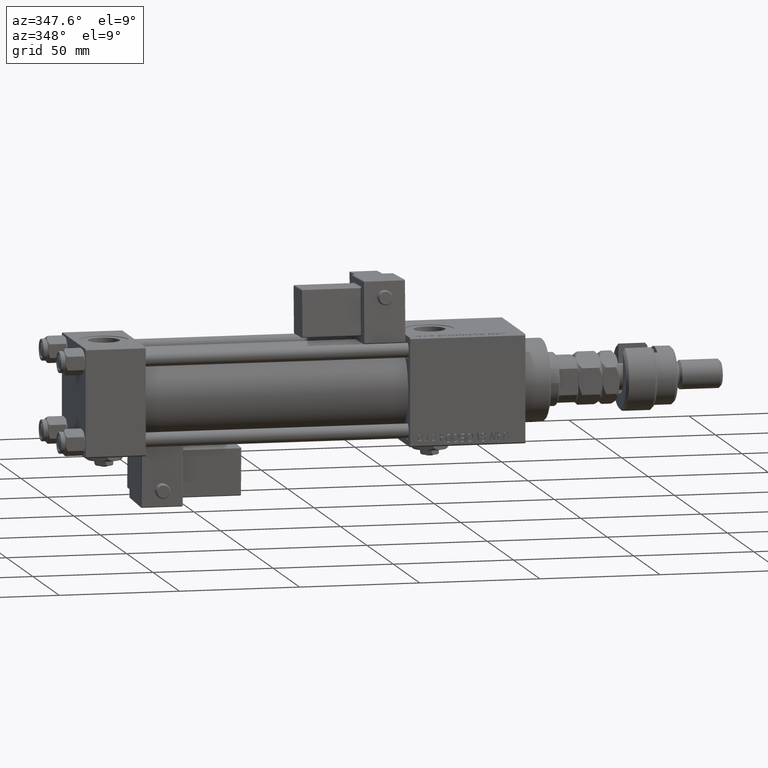
[diagram: clean part render]
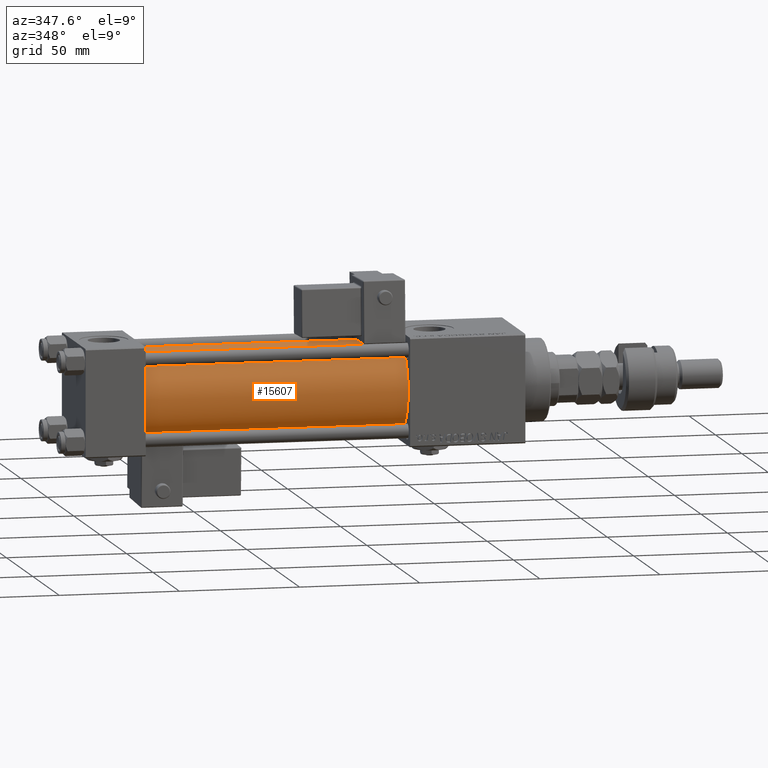
[diagram: same view with one face highlighted and labeled with its STEP entity id]
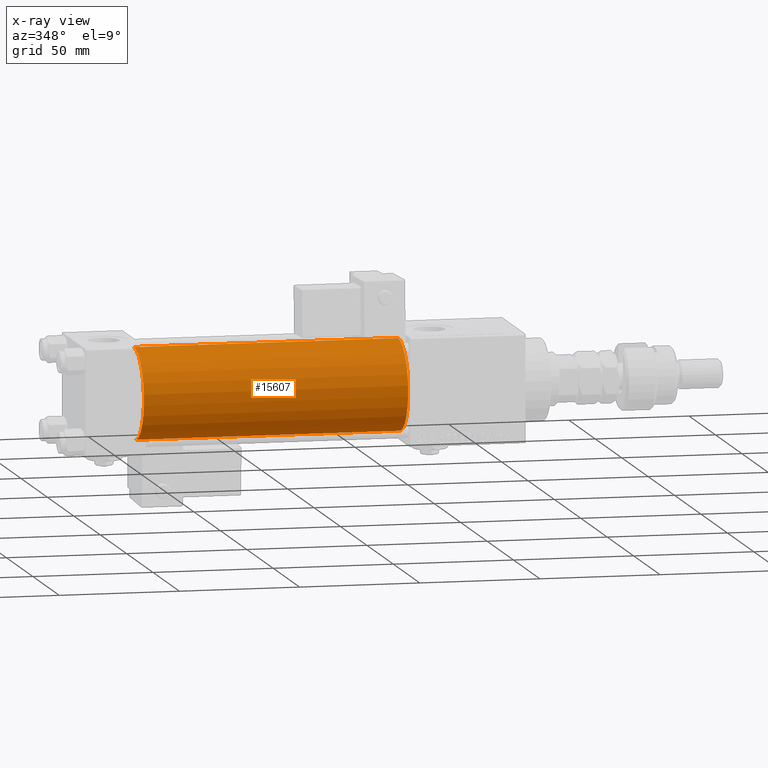
[diagram: x-ray of the same camera — body ghosted, the highlighted face saturated]
A machine part, auxiliary view. The second image highlights one B-rep face of the part: STEP entity #15607.
The next image is the same camera in x-ray: the body ghosted, the highlighted face saturated — about 0% of this face is hidden behind the body in this view.
In plain terms, the highlighted cylindrical surface (partial cylindrical patch) has radius 19 mm, axis along (-1, -0, -0).
Its self-contained STEP definition (entity closure, byte-faithful):
#2165 = VERTEX_POINT ( 'NONE', #2872 ) ;
#2872 = CARTESIAN_POINT ( 'NONE',  ( 135.0000000000000000, -2.752562955852396712E-16, -19.00000000000000000 ) ) ;
#6840 = DIRECTION ( 'NONE',  ( -1.000000000000000000, -0.000000000000000000, -0.000000000000000000 ) ) ;
#11872 = EDGE_LOOP ( 'NONE', ( #19122, #31670, #49704, #14670 ) ) ;
#12731 = EDGE_CURVE ( 'NONE', #2165, #35326, #40670, .T. ) ;
#12824 = DIRECTION ( 'NONE',  ( -1.000000000000000000, -0.000000000000000000, -0.000000000000000000 ) ) ;
#12999 = DIRECTION ( 'NONE',  ( 1.000000000000000000, 0.000000000000000000, 0.000000000000000000 ) ) ;
#14670 = ORIENTED_EDGE ( 'NONE', *, *, #26975, .T. ) ;
#14844 = DIRECTION ( 'NONE',  ( -1.000000000000000000, -0.000000000000000000, -0.000000000000000000 ) ) ;
#15607 = ADVANCED_FACE ( 'NONE', ( #34923 ), #20969, .T. ) ;
#19122 = ORIENTED_EDGE ( 'NONE', *, *, #12731, .F. ) ;
#19768 = DIRECTION ( 'NONE',  ( 1.000000000000000000, -0.000000000000000000, 0.000000000000000000 ) ) ;
#20291 = AXIS2_PLACEMENT_3D ( 'NONE', #30574, #12824, #48284 ) ;
#20969 = CYLINDRICAL_SURFACE ( 'NONE', #20291, 19.00000000000000000 ) ;
#24973 = DIRECTION ( 'NONE',  ( 0.000000000000000000, 0.000000000000000000, 1.000000000000000000 ) ) ;
#26975 = EDGE_CURVE ( 'NONE', #44243, #35326, #36438, .T. ) ;
#30574 = CARTESIAN_POINT ( 'NONE',  ( 135.0000000000000000, -2.602085213965210642E-15, 0.000000000000000000 ) ) ;
#31670 = ORIENTED_EDGE ( 'NONE', *, *, #53705, .F. ) ;
#34844 = VECTOR ( 'NONE', #14844, 1000.000000000000000 ) ;
#34923 = FACE_OUTER_BOUND ( 'NONE', #11872, .T. ) ;
#35326 = VERTEX_POINT ( 'NONE', #53496 ) ;
#35351 = EDGE_CURVE ( 'NONE', #50572, #44243, #47577, .T. ) ;
#36438 = CIRCLE ( 'NONE', #48507, 19.00000000000000000 ) ;
#40670 = LINE ( 'NONE', #49946, #57269 ) ;
#44243 = VERTEX_POINT ( 'NONE', #49686 ) ;
#47577 = LINE ( 'NONE', #54345, #34844 ) ;
#48284 = DIRECTION ( 'NONE',  ( 0.000000000000000000, 0.000000000000000000, 1.000000000000000000 ) ) ;
#48385 = AXIS2_PLACEMENT_3D ( 'NONE', #52794, #12999, #48448 ) ;
#48448 = DIRECTION ( 'NONE',  ( 0.000000000000000000, 0.000000000000000000, -1.000000000000000000 ) ) ;
#48507 = AXIS2_PLACEMENT_3D ( 'NONE', #51416, #19768, #24973 ) ;
#48963 = CARTESIAN_POINT ( 'NONE',  ( 135.0000000000000000, -2.602085213965210642E-15, 19.00000000000000000 ) ) ;
#49686 = CARTESIAN_POINT ( 'NONE',  ( 24.99999999999999289, -2.602085213965210642E-15, 19.00000000000000000 ) ) ;
#49704 = ORIENTED_EDGE ( 'NONE', *, *, #35351, .T. ) ;
#49946 = CARTESIAN_POINT ( 'NONE',  ( 135.0000000000000000, -2.752562955852396712E-16, -19.00000000000000000 ) ) ;
#50572 = VERTEX_POINT ( 'NONE', #48963 ) ;
#51416 = CARTESIAN_POINT ( 'NONE',  ( 24.99999999999999289, -2.602085213965210642E-15, 0.000000000000000000 ) ) ;
#52794 = CARTESIAN_POINT ( 'NONE',  ( 135.0000000000000000, -2.602085213965210642E-15, 0.000000000000000000 ) ) ;
#53496 = CARTESIAN_POINT ( 'NONE',  ( 24.99999999999999289, -2.752562955852396712E-16, -19.00000000000000000 ) ) ;
#53705 = EDGE_CURVE ( 'NONE', #50572, #2165, #54826, .T. ) ;
#54345 = CARTESIAN_POINT ( 'NONE',  ( 135.0000000000000000, -2.602085213965210642E-15, 19.00000000000000000 ) ) ;
#54826 = CIRCLE ( 'NONE', #48385, 19.00000000000000000 ) ;
#57269 = VECTOR ( 'NONE', #6840, 1000.000000000000000 ) ;